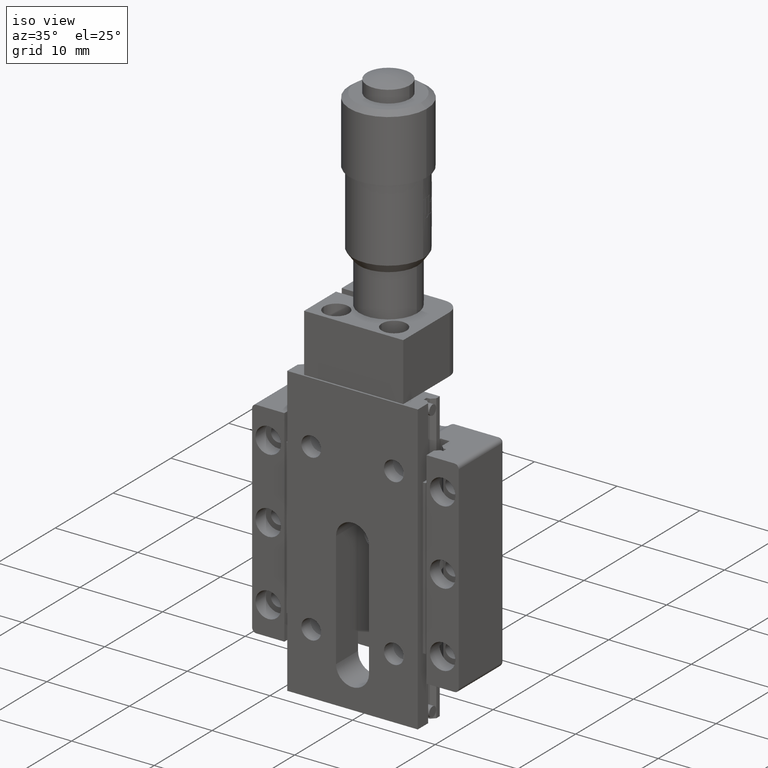
[diagram: clean part render]
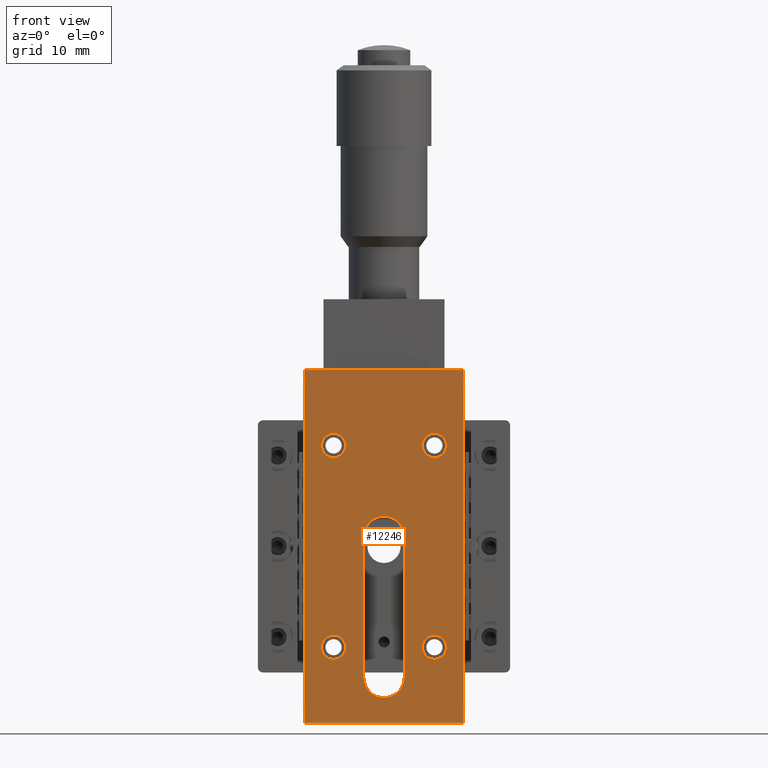
[diagram: tour spotlight — one face highlighted and labeled with its STEP entity id]
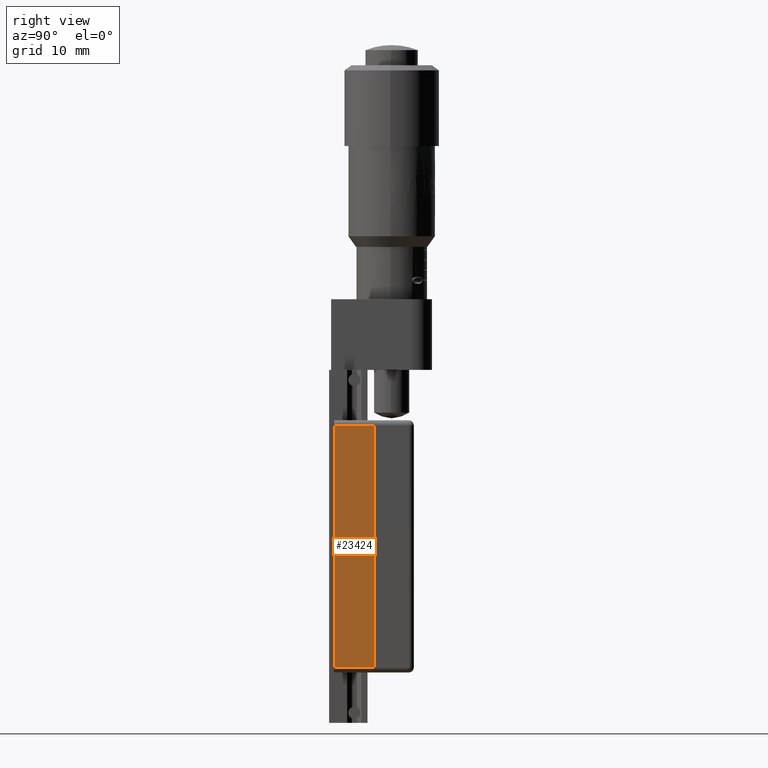
[diagram: tour spotlight — one face highlighted and labeled with its STEP entity id]
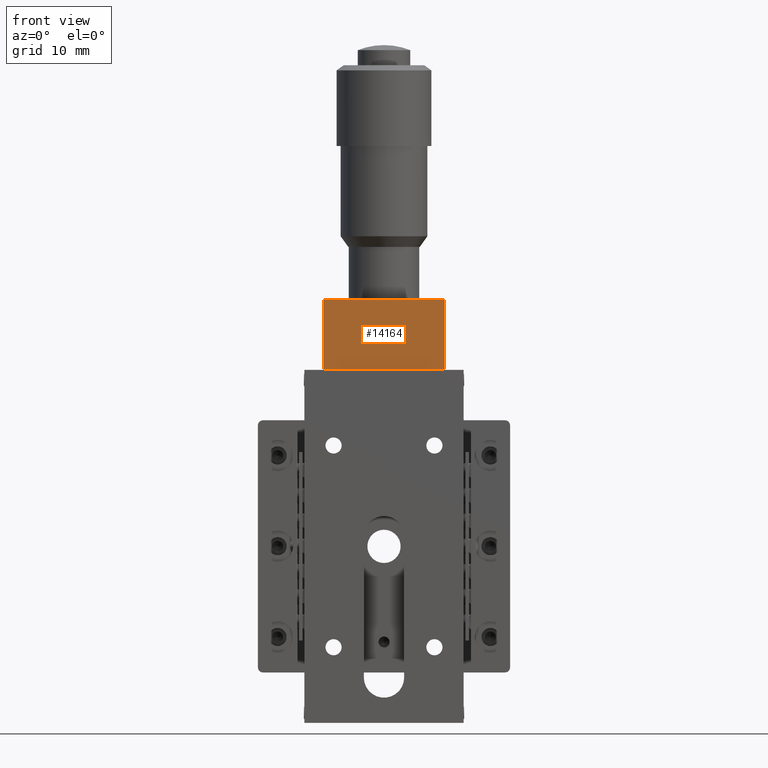
[diagram: tour spotlight — one face highlighted and labeled with its STEP entity id]
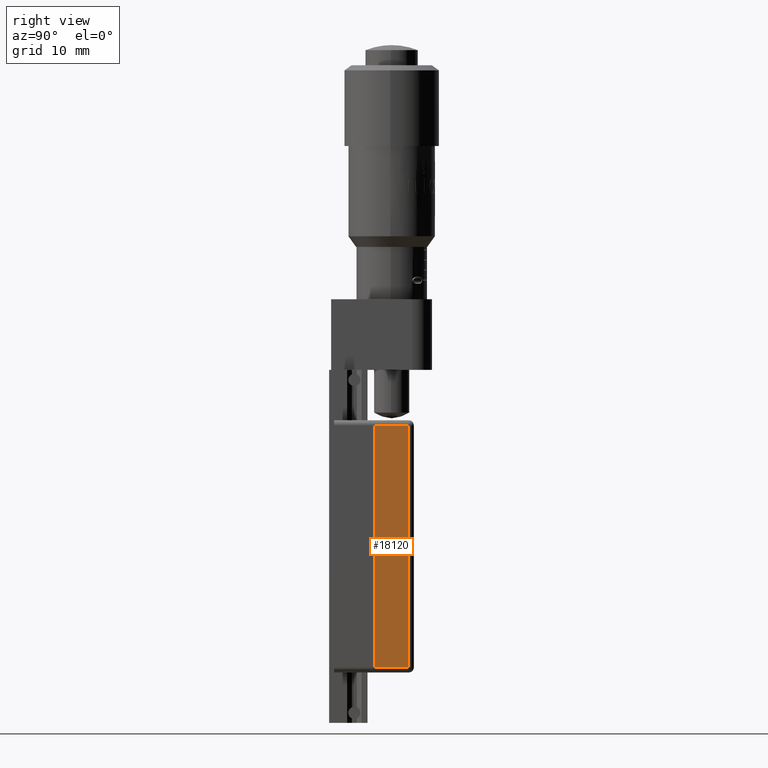
[diagram: tour spotlight — one face highlighted and labeled with its STEP entity id]
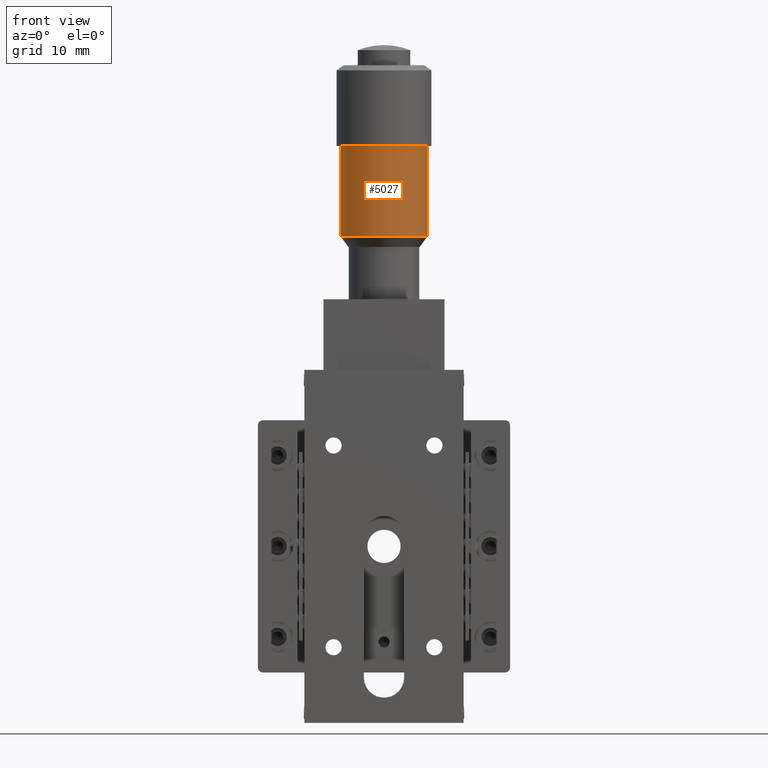
[diagram: tour spotlight — one face highlighted and labeled with its STEP entity id]
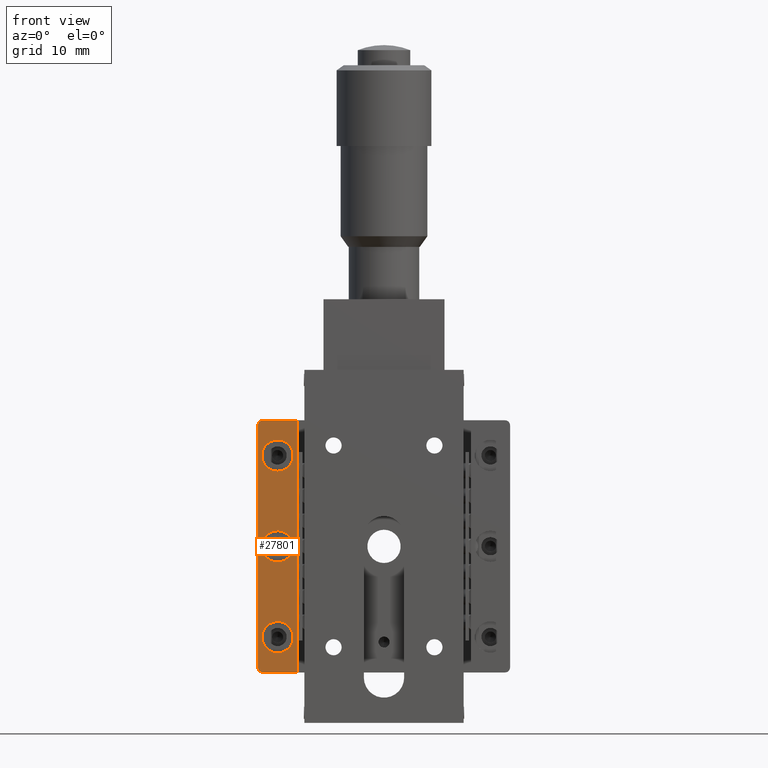
[diagram: tour spotlight — one face highlighted and labeled with its STEP entity id]
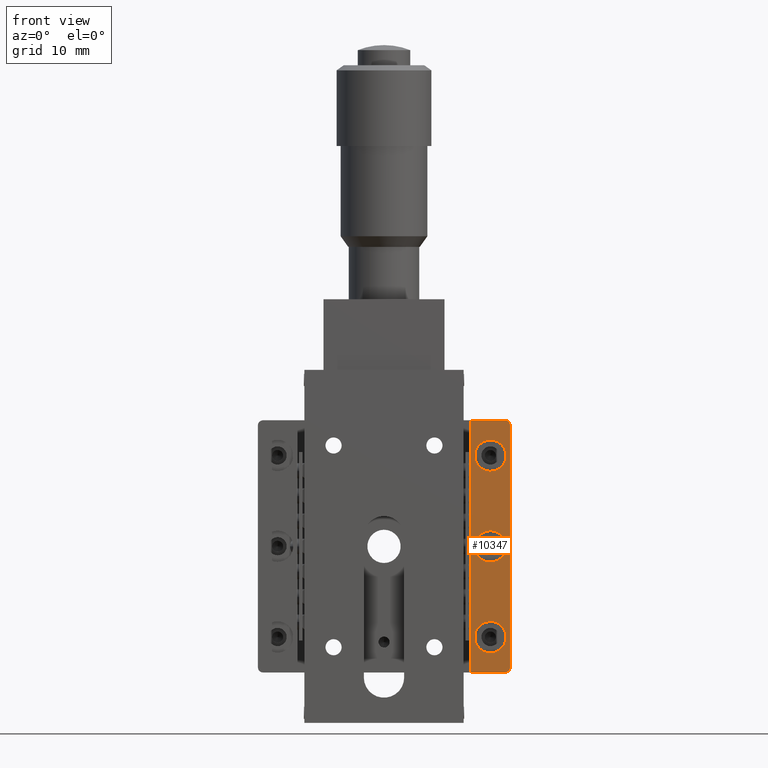
[diagram: tour spotlight — one face highlighted and labeled with its STEP entity id]
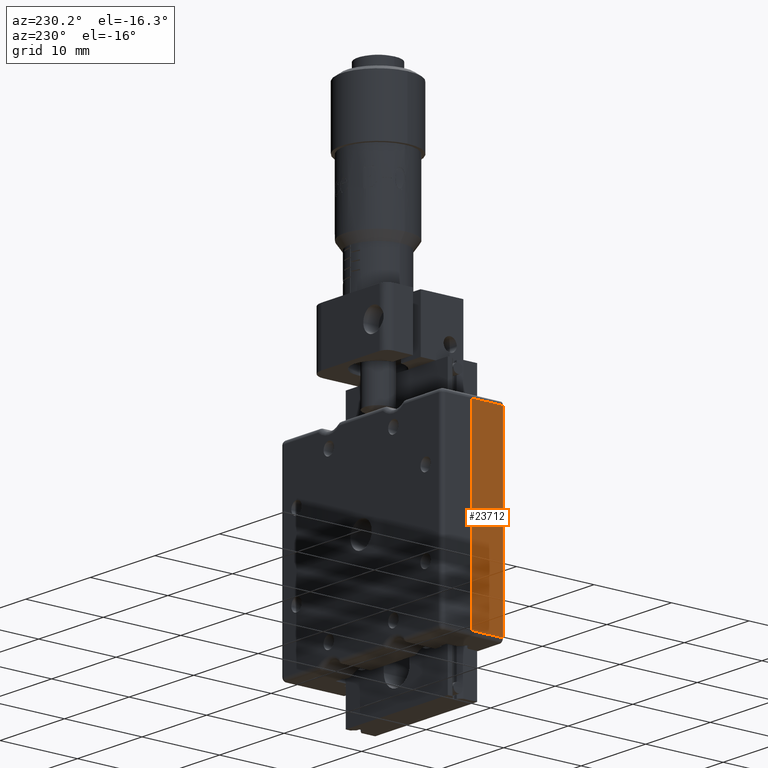
[diagram: tour spotlight — one face highlighted and labeled with its STEP entity id]
A machine part: a face-by-face anatomy tour. The part has 832 B-rep faces; the first image is the clean iso view, then the 8 largest visible faces are spotlighted one at a time (largest first), each with its STEP entity span.

Face 1 — front view, entity #12246. In plain terms, the highlighted planar face has unit normal (0, 1, 0).
Definition (entity closure, byte-faithful):
#123 = CIRCLE ( 'NONE', #15542, 1.199999999999999700 ) ;
#515 = DIRECTION ( 'NONE',  ( 0.0000000000000000000, 1.110223024625156700E-015, -1.000000000000000000 ) ) ;
#624 = PLANE ( 'NONE',  #18451 ) ;
#821 = CARTESIAN_POINT ( 'NONE',  ( 7.900000000000000400, 1.942890293094024300E-014, -17.50000000000000000 ) ) ;
#1075 = EDGE_CURVE ( 'NONE', #9362, #20607, #22504, .T. ) ;
#1411 = EDGE_CURVE ( 'NONE', #20607, #9362, #26750, .T. ) ;
#1953 = AXIS2_PLACEMENT_3D ( 'NONE', #7807, #26919, #2202 ) ;
#1964 = CIRCLE ( 'NONE', #17140, 2.000000000000000000 ) ;
#2198 = EDGE_LOOP ( 'NONE', ( #5336, #11113 ) ) ;
#2202 = DIRECTION ( 'NONE',  ( 0.0000000000000000000, 1.110223024625156700E-015, -1.000000000000000000 ) ) ;
#2288 = VERTEX_POINT ( 'NONE', #11480 ) ;
#2291 = DIRECTION ( 'NONE',  ( -1.000000000000000000, 0.0000000000000000000, 0.0000000000000000000 ) ) ;
#2564 = CARTESIAN_POINT ( 'NONE',  ( -2.000000000000000000, 1.443289932012704100E-014, -13.00000000000000400 ) ) ;
#2698 = DIRECTION ( 'NONE',  ( 0.0000000000000000000, 1.110223024625156500E-015, -1.000000000000000000 ) ) ;
#3035 = DIRECTION ( 'NONE',  ( -0.0000000000000000000, -1.000000000000000000, 1.387778780781445900E-015 ) ) ;
#3066 = DIRECTION ( 'NONE',  ( -0.0000000000000000000, -1.000000000000000000, 1.387778780781445900E-015 ) ) ;
#3231 = DIRECTION ( 'NONE',  ( 0.0000000000000000000, 1.110223024625156500E-015, -1.000000000000000000 ) ) ;
#3294 = ORIENTED_EDGE ( 'NONE', *, *, #26807, .F. ) ;
#3336 = CARTESIAN_POINT ( 'NONE',  ( 5.000000000000001800, -1.110223024625156700E-014, 10.00000000000000000 ) ) ;
#3577 = CARTESIAN_POINT ( 'NONE',  ( 4.999999999999999100, 1.243449787580176000E-014, -11.20000000000000300 ) ) ;
#3988 = CARTESIAN_POINT ( 'NONE',  ( -2.000000000000000000, 1.443289932012704100E-014, -13.00000000000000400 ) ) ;
#4057 = CARTESIAN_POINT ( 'NONE',  ( 5.000000000000001800, -9.436895709313832200E-015, 11.19999999999999900 ) ) ;
#4111 = DIRECTION ( 'NONE',  ( -0.0000000000000000000, -1.000000000000000000, 1.387778780781445900E-015 ) ) ;
#4207 = EDGE_CURVE ( 'NONE', #12172, #5530, #23193, .T. ) ;
#4216 = ORIENTED_EDGE ( 'NONE', *, *, #4843, .F. ) ;
#4843 = EDGE_CURVE ( 'NONE', #34084, #34095, #10889, .T. ) ;
#4943 = CARTESIAN_POINT ( 'NONE',  ( -5.000000000000000900, 1.110223024625156700E-014, -10.00000000000000200 ) ) ;
#5256 = ORIENTED_EDGE ( 'NONE', *, *, #9665, .T. ) ;
#5336 = ORIENTED_EDGE ( 'NONE', *, *, #1075, .F. ) ;
#5349 = FACE_BOUND ( 'NONE', #20700, .T. ) ;
#5530 = VERTEX_POINT ( 'NONE', #32661 ) ;
#5802 = DIRECTION ( 'NONE',  ( -0.0000000000000000000, -1.000000000000000000, 1.387778780781445900E-015 ) ) ;
#5975 = EDGE_CURVE ( 'NONE', #19625, #9632, #30275, .T. ) ;
#6233 = LINE ( 'NONE', #16791, #13461 ) ;
#6430 = LINE ( 'NONE', #7745, #34474 ) ;
#6618 = ORIENTED_EDGE ( 'NONE', *, *, #11742, .F. ) ;
#6721 = DIRECTION ( 'NONE',  ( 9.293161478447181700E-017, 1.110223024625156700E-015, -1.000000000000000000 ) ) ;
#6748 = ORIENTED_EDGE ( 'NONE', *, *, #8784, .F. ) ;
#6973 = AXIS2_PLACEMENT_3D ( 'NONE', #32997, #3066, #2698 ) ;
#7062 = CARTESIAN_POINT ( 'NONE',  ( 4.999999999999999100, 1.110223024625157200E-014, -10.00000000000000400 ) ) ;
#7745 = CARTESIAN_POINT ( 'NONE',  ( 2.000000000000000000, 1.443289932012704100E-014, -13.00000000000000400 ) ) ;
#7807 = CARTESIAN_POINT ( 'NONE',  ( -1.775737858763662000E-015, -1.110223024625153800E-015, 0.9999999999999974500 ) ) ;
#8285 = DIRECTION ( 'NONE',  ( 0.0000000000000000000, 1.110223024625156500E-015, -1.000000000000000000 ) ) ;
#8376 = VECTOR ( 'NONE', #21830, 1000.000000000000000 ) ;
#8587 = EDGE_CURVE ( 'NONE', #13687, #2288, #13174, .T. ) ;
#8784 = EDGE_CURVE ( 'NONE', #26411, #19625, #32238, .T. ) ;
#8958 = DIRECTION ( 'NONE',  ( -0.0000000000000000000, -1.000000000000000000, 1.387778780781445900E-015 ) ) ;
#9161 = CARTESIAN_POINT ( 'NONE',  ( -7.900000000000002100, -1.942890293094024300E-014, 17.50000000000000000 ) ) ;
#9275 = EDGE_CURVE ( 'NONE', #14502, #17885, #22861, .T. ) ;
#9300 = DIRECTION ( 'NONE',  ( -0.0000000000000000000, -1.000000000000000000, 1.387778780781445900E-015 ) ) ;
#9315 = ORIENTED_EDGE ( 'NONE', *, *, #10950, .F. ) ;
#9362 = VERTEX_POINT ( 'NONE', #27375 ) ;
#9632 = VERTEX_POINT ( 'NONE', #2564 ) ;
#9665 = EDGE_CURVE ( 'NONE', #12172, #17885, #33501, .T. ) ;
#9693 = DIRECTION ( 'NONE',  ( -0.0000000000000000000, -1.000000000000000000, 1.387778780781445900E-015 ) ) ;
#9805 = ORIENTED_EDGE ( 'NONE', *, *, #20784, .F. ) ;
#10889 = CIRCLE ( 'NONE', #32994, 1.199999999999999700 ) ;
#10950 = EDGE_CURVE ( 'NONE', #5530, #14502, #6233, .T. ) ;
#11113 = ORIENTED_EDGE ( 'NONE', *, *, #1411, .F. ) ;
#11213 = ORIENTED_EDGE ( 'NONE', *, *, #4207, .F. ) ;
#11480 = CARTESIAN_POINT ( 'NONE',  ( 5.000000000000001800, -9.769962616701380700E-015, 8.800000000000000700 ) ) ;
#11736 = FACE_BOUND ( 'NONE', #31103, .T. ) ;
#11742 = EDGE_CURVE ( 'NONE', #2288, #13687, #32122, .T. ) ;
#12027 = DIRECTION ( 'NONE',  ( 0.0000000000000000000, 1.110223024625156700E-015, -1.000000000000000000 ) ) ;
#12172 = VERTEX_POINT ( 'NONE', #30008 ) ;
#12246 = ADVANCED_FACE ( 'NONE', ( #21041, #5349, #33816, #18958, #11736, #26549 ), #624, .F. ) ;
#12355 = VERTEX_POINT ( 'NONE', #25697 ) ;
#13020 = DIRECTION ( 'NONE',  ( 0.0000000000000000000, 1.110223024625157500E-015, -1.000000000000000000 ) ) ;
#13174 = CIRCLE ( 'NONE', #29982, 1.199999999999999700 ) ;
#13461 = VECTOR ( 'NONE', #22557, 1000.000000000000000 ) ;
#13562 = AXIS2_PLACEMENT_3D ( 'NONE', #18148, #20528, #23215 ) ;
#13687 = VERTEX_POINT ( 'NONE', #4057 ) ;
#14502 = VERTEX_POINT ( 'NONE', #821 ) ;
#14854 = EDGE_CURVE ( 'NONE', #16601, #12355, #123, .T. ) ;
#15542 = AXIS2_PLACEMENT_3D ( 'NONE', #16266, #3035, #8285 ) ;
#15886 = DIRECTION ( 'NONE',  ( -0.0000000000000000000, -1.000000000000000000, 1.387778780781445900E-015 ) ) ;
#16266 = CARTESIAN_POINT ( 'NONE',  ( -4.999999999999998200, -1.110223024625156700E-014, 10.00000000000000200 ) ) ;
#16601 = VERTEX_POINT ( 'NONE', #31598 ) ;
#16791 = CARTESIAN_POINT ( 'NONE',  ( 7.900000000000000400, -1.948441408217151000E-014, 17.55000000000000400 ) ) ;
#17140 = AXIS2_PLACEMENT_3D ( 'NONE', #35101, #15886, #13020 ) ;
#17193 = ORIENTED_EDGE ( 'NONE', *, *, #30639, .F. ) ;
#17474 = ORIENTED_EDGE ( 'NONE', *, *, #5975, .F. ) ;
#17885 = VERTEX_POINT ( 'NONE', #23896 ) ;
#18148 = CARTESIAN_POINT ( 'NONE',  ( -4.999999999999998200, -1.110223024625156700E-014, 10.00000000000000200 ) ) ;
#18451 = AXIS2_PLACEMENT_3D ( 'NONE', #28124, #22406, #515 ) ;
#18958 = FACE_BOUND ( 'NONE', #19936, .T. ) ;
#19488 = CARTESIAN_POINT ( 'NONE',  ( 4.999999999999999100, 1.110223024625157200E-014, -10.00000000000000400 ) ) ;
#19625 = VERTEX_POINT ( 'NONE', #26935 ) ;
#19806 = VERTEX_POINT ( 'NONE', #22187 ) ;
#19936 = EDGE_LOOP ( 'NONE', ( #3294, #33049 ) ) ;
#20528 = DIRECTION ( 'NONE',  ( -0.0000000000000000000, -1.000000000000000000, 1.387778780781445900E-015 ) ) ;
#20607 = VERTEX_POINT ( 'NONE', #30945 ) ;
#20700 = EDGE_LOOP ( 'NONE', ( #6618, #23331 ) ) ;
#20784 = EDGE_CURVE ( 'NONE', #9632, #19806, #1964, .T. ) ;
#21041 = FACE_BOUND ( 'NONE', #2198, .T. ) ;
#21113 = DIRECTION ( 'NONE',  ( 0.0000000000000000000, 1.110223024625156700E-015, -1.000000000000000000 ) ) ;
#21785 = VERTEX_POINT ( 'NONE', #27127 ) ;
#21830 = DIRECTION ( 'NONE',  ( 1.000000000000000000, 0.0000000000000000000, -0.0000000000000000000 ) ) ;
#22187 = CARTESIAN_POINT ( 'NONE',  ( 2.000000000000000000, 1.443289932012704100E-014, -13.00000000000000400 ) ) ;
#22406 = DIRECTION ( 'NONE',  ( 0.0000000000000000000, 1.000000000000000000, 1.110223024625156700E-015 ) ) ;
#22460 = VECTOR ( 'NONE', #2291, 1000.000000000000000 ) ;
#22504 = CIRCLE ( 'NONE', #6973, 1.199999999999999700 ) ;
#22557 = DIRECTION ( 'NONE',  ( 0.0000000000000000000, 1.110223024625156700E-015, -1.000000000000000000 ) ) ;
#22715 = CARTESIAN_POINT ( 'NONE',  ( 5.000000000000001800, -1.110223024625156700E-014, 10.00000000000000000 ) ) ;
#22861 = LINE ( 'NONE', #26151, #22460 ) ;
#23193 = LINE ( 'NONE', #9161, #8376 ) ;
#23215 = DIRECTION ( 'NONE',  ( 0.0000000000000000000, 1.110223024625156500E-015, -1.000000000000000000 ) ) ;
#23331 = ORIENTED_EDGE ( 'NONE', *, *, #8587, .F. ) ;
#23896 = CARTESIAN_POINT ( 'NONE',  ( -7.900000000000002100, 1.942890293094024300E-014, -17.50000000000000000 ) ) ;
#23905 = ORIENTED_EDGE ( 'NONE', *, *, #27511, .F. ) ;
#24072 = AXIS2_PLACEMENT_3D ( 'NONE', #19488, #5802, #32638 ) ;
#24670 = EDGE_LOOP ( 'NONE', ( #17474, #6748, #17193, #23905, #9805 ) ) ;
#25697 = CARTESIAN_POINT ( 'NONE',  ( -4.999999999999998200, -9.769962616701380700E-015, 8.800000000000002500 ) ) ;
#26141 = AXIS2_PLACEMENT_3D ( 'NONE', #22715, #8958, #3231 ) ;
#26151 = CARTESIAN_POINT ( 'NONE',  ( 7.900000000000000400, 1.942890293094024300E-014, -17.50000000000000000 ) ) ;
#26411 = VERTEX_POINT ( 'NONE', #31100 ) ;
#26549 = FACE_OUTER_BOUND ( 'NONE', #30265, .T. ) ;
#26750 = CIRCLE ( 'NONE', #34973, 1.199999999999999700 ) ;
#26807 = EDGE_CURVE ( 'NONE', #12355, #16601, #26822, .T. ) ;
#26822 = CIRCLE ( 'NONE', #13562, 1.199999999999999700 ) ;
#26919 = DIRECTION ( 'NONE',  ( -0.0000000000000000000, -1.000000000000000000, 1.387778780781445900E-015 ) ) ;
#26935 = CARTESIAN_POINT ( 'NONE',  ( -2.000000000000001300, -1.110223024625153800E-015, 0.9999999999999974500 ) ) ;
#27127 = CARTESIAN_POINT ( 'NONE',  ( 1.999999999999997800, -1.110223024625153600E-015, 0.9999999999999970000 ) ) ;
#27375 = CARTESIAN_POINT ( 'NONE',  ( -5.000000000000000900, 1.243449787580175500E-014, -11.20000000000000100 ) ) ;
#27511 = EDGE_CURVE ( 'NONE', #19806, #21785, #6430, .T. ) ;
#27955 = CARTESIAN_POINT ( 'NONE',  ( 4.999999999999999100, 1.276756478318930500E-014, -8.800000000000004300 ) ) ;
#28124 = CARTESIAN_POINT ( 'NONE',  ( -7.900000000000002100, -1.948441408217151000E-014, 17.55000000000000400 ) ) ;
#28416 = CARTESIAN_POINT ( 'NONE',  ( -1.775737858763662000E-015, -1.110223024625153800E-015, 0.9999999999999974500 ) ) ;
#28435 = CIRCLE ( 'NONE', #29587, 1.999999999999999600 ) ;
#29253 = DIRECTION ( 'NONE',  ( 0.0000000000000000000, 1.110223024625156500E-015, -1.000000000000000000 ) ) ;
#29445 = CARTESIAN_POINT ( 'NONE',  ( -7.900000000000002100, -1.948441408217151000E-014, 17.55000000000000400 ) ) ;
#29533 = DIRECTION ( 'NONE',  ( -0.0000000000000000000, -1.000000000000000000, 1.387778780781445900E-015 ) ) ;
#29587 = AXIS2_PLACEMENT_3D ( 'NONE', #28416, #9300, #12027 ) ;
#29646 = DIRECTION ( 'NONE',  ( 0.0000000000000000000, 1.110223024625156500E-015, -1.000000000000000000 ) ) ;
#29829 = DIRECTION ( 'NONE',  ( -1.548860246407863600E-016, -1.110223024625156700E-015, 1.000000000000000000 ) ) ;
#29982 = AXIS2_PLACEMENT_3D ( 'NONE', #3336, #4111, #29253 ) ;
#30008 = CARTESIAN_POINT ( 'NONE',  ( -7.900000000000002100, -1.942890293094024300E-014, 17.50000000000000000 ) ) ;
#30083 = VECTOR ( 'NONE', #21113, 1000.000000000000000 ) ;
#30265 = EDGE_LOOP ( 'NONE', ( #11213, #5256, #30320, #9315 ) ) ;
#30275 = LINE ( 'NONE', #3988, #32378 ) ;
#30320 = ORIENTED_EDGE ( 'NONE', *, *, #9275, .F. ) ;
#30389 = CIRCLE ( 'NONE', #24072, 1.199999999999999700 ) ;
#30639 = EDGE_CURVE ( 'NONE', #21785, #26411, #28435, .T. ) ;
#30945 = CARTESIAN_POINT ( 'NONE',  ( -5.000000000000000900, 1.276756478318930200E-014, -8.800000000000002500 ) ) ;
#31100 = CARTESIAN_POINT ( 'NONE',  ( -1.775737858763662000E-015, 1.665334536937737200E-015, 2.999999999999996900 ) ) ;
#31103 = EDGE_LOOP ( 'NONE', ( #4216, #34418 ) ) ;
#31598 = CARTESIAN_POINT ( 'NONE',  ( -4.999999999999998200, -9.436895709313832200E-015, 11.20000000000000100 ) ) ;
#32122 = CIRCLE ( 'NONE', #26141, 1.199999999999999700 ) ;
#32238 = CIRCLE ( 'NONE', #1953, 1.999999999999999600 ) ;
#32378 = VECTOR ( 'NONE', #6721, 1000.000000000000000 ) ;
#32638 = DIRECTION ( 'NONE',  ( 0.0000000000000000000, 1.110223024625156500E-015, -1.000000000000000000 ) ) ;
#32661 = CARTESIAN_POINT ( 'NONE',  ( 7.900000000000000400, -1.942890293094024300E-014, 17.50000000000000000 ) ) ;
#32994 = AXIS2_PLACEMENT_3D ( 'NONE', #7062, #9693, #34269 ) ;
#32997 = CARTESIAN_POINT ( 'NONE',  ( -5.000000000000000900, 1.110223024625156700E-014, -10.00000000000000200 ) ) ;
#33049 = ORIENTED_EDGE ( 'NONE', *, *, #14854, .F. ) ;
#33501 = LINE ( 'NONE', #29445, #30083 ) ;
#33816 = FACE_BOUND ( 'NONE', #24670, .T. ) ;
#34084 = VERTEX_POINT ( 'NONE', #3577 ) ;
#34095 = VERTEX_POINT ( 'NONE', #27955 ) ;
#34269 = DIRECTION ( 'NONE',  ( 0.0000000000000000000, 1.110223024625156500E-015, -1.000000000000000000 ) ) ;
#34418 = ORIENTED_EDGE ( 'NONE', *, *, #34438, .F. ) ;
#34438 = EDGE_CURVE ( 'NONE', #34095, #34084, #30389, .T. ) ;
#34474 = VECTOR ( 'NONE', #29829, 1000.000000000000000 ) ;
#34973 = AXIS2_PLACEMENT_3D ( 'NONE', #4943, #29533, #29646 ) ;
#35101 = CARTESIAN_POINT ( 'NONE',  ( 0.0000000000000000000, 1.443289932012704100E-014, -13.00000000000000400 ) ) ;

Face 2 — right view, entity #23424. In plain terms, the highlighted planar face has unit normal (-1, -0, -0).
Definition (entity closure, byte-faithful):
#387 = DIRECTION ( 'NONE',  ( 5.073516085382030700E-015, -1.000000000000000000, 1.868885533004952300E-016 ) ) ;
#554 = VECTOR ( 'NONE', #387, 1000.000000000000000 ) ;
#2429 = VERTEX_POINT ( 'NONE', #20269 ) ;
#3590 = VECTOR ( 'NONE', #14156, 1000.000000000000000 ) ;
#4181 = VERTEX_POINT ( 'NONE', #14539 ) ;
#5673 = VERTEX_POINT ( 'NONE', #29439 ) ;
#7952 = DIRECTION ( 'NONE',  ( -1.665334536937669200E-016, 1.868885533004865300E-016, 1.000000000000000000 ) ) ;
#8700 = LINE ( 'NONE', #24761, #554 ) ;
#9884 = EDGE_LOOP ( 'NONE', ( #23346, #16249, #25691, #20368 ) ) ;
#11765 = CARTESIAN_POINT ( 'NONE',  ( 12.49999999999999500, 0.5000000000000967000, 11.99999999999983800 ) ) ;
#12506 = DIRECTION ( 'NONE',  ( 1.665334536937669200E-016, -1.868885533004865300E-016, -1.000000000000000000 ) ) ;
#14156 = DIRECTION ( 'NONE',  ( 1.665334536937669200E-016, -1.868885533004865300E-016, -1.000000000000000000 ) ) ;
#14274 = CARTESIAN_POINT ( 'NONE',  ( 12.49999999999997300, 4.500000000000097700, 18.27800139664771400 ) ) ;
#14539 = CARTESIAN_POINT ( 'NONE',  ( 12.49999999999999800, 0.5000000000000923700, -12.00000000000016200 ) ) ;
#15376 = VECTOR ( 'NONE', #12506, 1000.000000000000000 ) ;
#15781 = EDGE_CURVE ( 'NONE', #4181, #5673, #31575, .T. ) ;
#16174 = PLANE ( 'NONE',  #29902 ) ;
#16249 = ORIENTED_EDGE ( 'NONE', *, *, #24660, .T. ) ;
#16614 = EDGE_CURVE ( 'NONE', #29698, #4181, #18782, .T. ) ;
#17017 = CARTESIAN_POINT ( 'NONE',  ( 12.49999999999999800, 0.5000000000000923700, -12.00000000000016200 ) ) ;
#18782 = LINE ( 'NONE', #34008, #15376 ) ;
#18896 = DIRECTION ( 'NONE',  ( -1.000000000000000000, -5.073516085382030700E-015, -1.665334536937659900E-016 ) ) ;
#19503 = DIRECTION ( 'NONE',  ( -5.073516085382030700E-015, 1.000000000000000000, -1.868885533004950300E-016 ) ) ;
#20269 = CARTESIAN_POINT ( 'NONE',  ( 12.49999999999997500, 4.500000000000096800, 11.99999999999983800 ) ) ;
#20368 = ORIENTED_EDGE ( 'NONE', *, *, #15781, .T. ) ;
#21590 = CARTESIAN_POINT ( 'NONE',  ( 12.49999999999999300, 0.5000000000000980300, 18.27800139664768900 ) ) ;
#23346 = ORIENTED_EDGE ( 'NONE', *, *, #24249, .F. ) ;
#23424 = ADVANCED_FACE ( 'NONE', ( #26553 ), #16174, .F. ) ;
#23541 = LINE ( 'NONE', #14274, #3590 ) ;
#24249 = EDGE_CURVE ( 'NONE', #2429, #5673, #23541, .T. ) ;
#24344 = VECTOR ( 'NONE', #19503, 1000.000000000000000 ) ;
#24660 = EDGE_CURVE ( 'NONE', #2429, #29698, #8700, .T. ) ;
#24761 = CARTESIAN_POINT ( 'NONE',  ( 12.49999999999999500, 0.5000000000000967000, 11.99999999999983800 ) ) ;
#25691 = ORIENTED_EDGE ( 'NONE', *, *, #16614, .T. ) ;
#26553 = FACE_OUTER_BOUND ( 'NONE', #9884, .T. ) ;
#29439 = CARTESIAN_POINT ( 'NONE',  ( 12.49999999999997900, 4.500000000000092400, -12.00000000000016200 ) ) ;
#29698 = VERTEX_POINT ( 'NONE', #11765 ) ;
#29902 = AXIS2_PLACEMENT_3D ( 'NONE', #21590, #18896, #7952 ) ;
#31575 = LINE ( 'NONE', #17017, #24344 ) ;
#34008 = CARTESIAN_POINT ( 'NONE',  ( 12.49999999999999300, 0.5000000000000980300, 18.27800139664768900 ) ) ;

Face 3 — front view, entity #14164. In plain terms, the highlighted planar face has unit normal (0, 1, -0).
Definition (entity closure, byte-faithful):
#1793 = FACE_OUTER_BOUND ( 'NONE', #28517, .T. ) ;
#3753 = CARTESIAN_POINT ( 'NONE',  ( 6.000000000000866000, 0.2000000000000033400, 17.50000000000000000 ) ) ;
#4104 = PLANE ( 'NONE',  #6878 ) ;
#6878 = AXIS2_PLACEMENT_3D ( 'NONE', #3753, #23087, #31286 ) ;
#8133 = DIRECTION ( 'NONE',  ( -2.775557561562891400E-016, -1.142172911347806300E-016, 1.000000000000000000 ) ) ;
#8416 = EDGE_CURVE ( 'NONE', #28541, #14781, #15738, .T. ) ;
#9448 = VECTOR ( 'NONE', #8133, 1000.000000000000000 ) ;
#14164 = ADVANCED_FACE ( 'NONE', ( #1793 ), #4104, .F. ) ;
#14781 = VERTEX_POINT ( 'NONE', #27397 ) ;
#15002 = CARTESIAN_POINT ( 'NONE',  ( 6.000000000000866000, 0.2000000000000033400, 17.50000000000000000 ) ) ;
#15362 = EDGE_CURVE ( 'NONE', #25095, #27795, #23902, .T. ) ;
#15738 = LINE ( 'NONE', #33843, #20796 ) ;
#16358 = EDGE_CURVE ( 'NONE', #27795, #14781, #23005, .T. ) ;
#17592 = DIRECTION ( 'NONE',  ( -1.000000000000000000, 6.111896442571328800E-016, 5.551115123125781700E-016 ) ) ;
#18722 = CARTESIAN_POINT ( 'NONE',  ( -5.999999999999134900, 0.2000000000000107200, 17.50000000000000000 ) ) ;
#19266 = ORIENTED_EDGE ( 'NONE', *, *, #34192, .T. ) ;
#19634 = CARTESIAN_POINT ( 'NONE',  ( -5.999999999999134900, 0.2000000000000107200, 17.50000000000000000 ) ) ;
#20796 = VECTOR ( 'NONE', #17592, 1000.000000000000000 ) ;
#21436 = VECTOR ( 'NONE', #23847, 1000.000000000000000 ) ;
#22125 = CARTESIAN_POINT ( 'NONE',  ( 6.000000000000860600, 0.2000000000000027000, 24.50000000000000000 ) ) ;
#23005 = LINE ( 'NONE', #18722, #9448 ) ;
#23087 = DIRECTION ( 'NONE',  ( 6.111896442571325900E-016, 1.000000000000000000, -5.082140893937405600E-016 ) ) ;
#23847 = DIRECTION ( 'NONE',  ( -2.775557561562891400E-016, -1.142172911347806300E-016, 1.000000000000000000 ) ) ;
#23902 = LINE ( 'NONE', #28126, #29045 ) ;
#24836 = ORIENTED_EDGE ( 'NONE', *, *, #8416, .T. ) ;
#25095 = VERTEX_POINT ( 'NONE', #25187 ) ;
#25187 = CARTESIAN_POINT ( 'NONE',  ( 6.000000000000866000, 0.2000000000000033400, 17.50000000000000000 ) ) ;
#26641 = ORIENTED_EDGE ( 'NONE', *, *, #15362, .F. ) ;
#26966 = LINE ( 'NONE', #15002, #21436 ) ;
#27397 = CARTESIAN_POINT ( 'NONE',  ( -5.999999999999139400, 0.2000000000000098600, 24.50000000000000000 ) ) ;
#27795 = VERTEX_POINT ( 'NONE', #19634 ) ;
#28126 = CARTESIAN_POINT ( 'NONE',  ( 6.000000000000866000, 0.2000000000000033400, 17.50000000000000000 ) ) ;
#28517 = EDGE_LOOP ( 'NONE', ( #24836, #34445, #26641, #19266 ) ) ;
#28541 = VERTEX_POINT ( 'NONE', #22125 ) ;
#29045 = VECTOR ( 'NONE', #33448, 1000.000000000000000 ) ;
#31286 = DIRECTION ( 'NONE',  ( 1.000000000000000000, -6.111896442571328800E-016, -5.551115123125781700E-016 ) ) ;
#33448 = DIRECTION ( 'NONE',  ( -1.000000000000000000, 6.111896442571328800E-016, 5.551115123125781700E-016 ) ) ;
#33843 = CARTESIAN_POINT ( 'NONE',  ( 6.000000000000860600, 0.2000000000000027000, 24.50000000000000000 ) ) ;
#34192 = EDGE_CURVE ( 'NONE', #25095, #28541, #26966, .T. ) ;
#34445 = ORIENTED_EDGE ( 'NONE', *, *, #16358, .F. ) ;

Face 4 — right view, entity #18120. In plain terms, the highlighted planar face has unit normal (-1, 0, 0).
Definition (entity closure, byte-faithful):
#369 = VERTEX_POINT ( 'NONE', #19393 ) ;
#2197 = EDGE_CURVE ( 'NONE', #369, #11429, #22898, .T. ) ;
#2201 = DIRECTION ( 'NONE',  ( -3.223402558938702000E-016, -1.000000000000000000, -7.006492321624085400E-046 ) ) ;
#3586 = DIRECTION ( 'NONE',  ( 3.223402558938702000E-016, 1.000000000000000000, 7.006492321624085400E-046 ) ) ;
#4010 = VERTEX_POINT ( 'NONE', #28361 ) ;
#4934 = VECTOR ( 'NONE', #24418, 1000.000000000000000 ) ;
#5054 = VECTOR ( 'NONE', #27639, 1000.000000000000000 ) ;
#10689 = ORIENTED_EDGE ( 'NONE', *, *, #23043, .F. ) ;
#10848 = CARTESIAN_POINT ( 'NONE',  ( 12.50000000000085100, 4.500000000000020400, -12.00000000000000000 ) ) ;
#11429 = VERTEX_POINT ( 'NONE', #13294 ) ;
#11460 = EDGE_CURVE ( 'NONE', #33937, #369, #29171, .T. ) ;
#12772 = LINE ( 'NONE', #29547, #17058 ) ;
#13294 = CARTESIAN_POINT ( 'NONE',  ( 12.50000000000086500, 7.900000000000030600, 12.00000000000000000 ) ) ;
#13896 = AXIS2_PLACEMENT_3D ( 'NONE', #20247, #19892, #3586 ) ;
#14759 = ORIENTED_EDGE ( 'NONE', *, *, #2197, .T. ) ;
#15778 = ORIENTED_EDGE ( 'NONE', *, *, #11460, .T. ) ;
#16363 = CARTESIAN_POINT ( 'NONE',  ( 12.50000000000085100, 4.500000000000020400, -12.50000000000000000 ) ) ;
#16369 = CARTESIAN_POINT ( 'NONE',  ( 12.50000000000086500, 7.900000000000030600, -12.50000000000000000 ) ) ;
#17058 = VECTOR ( 'NONE', #2201, 1000.000000000000000 ) ;
#17423 = EDGE_CURVE ( 'NONE', #11429, #4010, #12772, .T. ) ;
#18120 = ADVANCED_FACE ( 'NONE', ( #28495 ), #22815, .F. ) ;
#19393 = CARTESIAN_POINT ( 'NONE',  ( 12.50000000000086500, 7.900000000000030600, -12.00000000000000000 ) ) ;
#19892 = DIRECTION ( 'NONE',  ( -1.000000000000000000, 3.223402558938702000E-016, 3.116494029377566700E-061 ) ) ;
#20247 = CARTESIAN_POINT ( 'NONE',  ( 12.50000000000086500, 8.400000000000030600, -12.50000000000000000 ) ) ;
#21695 = CARTESIAN_POINT ( 'NONE',  ( 12.50000000000086500, 8.400000000000030600, -12.00000000000000000 ) ) ;
#22815 = PLANE ( 'NONE',  #13896 ) ;
#22898 = LINE ( 'NONE', #16369, #5054 ) ;
#23043 = EDGE_CURVE ( 'NONE', #33937, #4010, #25742, .T. ) ;
#24418 = DIRECTION ( 'NONE',  ( 3.223402558938702000E-016, 1.000000000000000000, 7.006492321624085400E-046 ) ) ;
#24864 = DIRECTION ( 'NONE',  ( -7.507670638184694700E-062, 6.130680781421074700E-046, 1.000000000000000000 ) ) ;
#25742 = LINE ( 'NONE', #16363, #34259 ) ;
#27639 = DIRECTION ( 'NONE',  ( -7.507670638184694700E-062, 6.130680781421074700E-046, 1.000000000000000000 ) ) ;
#28179 = ORIENTED_EDGE ( 'NONE', *, *, #17423, .T. ) ;
#28361 = CARTESIAN_POINT ( 'NONE',  ( 12.50000000000085100, 4.500000000000020400, 12.00000000000000000 ) ) ;
#28495 = FACE_OUTER_BOUND ( 'NONE', #31857, .T. ) ;
#29171 = LINE ( 'NONE', #21695, #4934 ) ;
#29547 = CARTESIAN_POINT ( 'NONE',  ( 12.50000000000085100, 4.500000000000020400, 12.00000000000000000 ) ) ;
#31857 = EDGE_LOOP ( 'NONE', ( #10689, #15778, #14759, #28179 ) ) ;
#33937 = VERTEX_POINT ( 'NONE', #10848 ) ;
#34259 = VECTOR ( 'NONE', #24864, 1000.000000000000000 ) ;

Face 5 — front view, entity #5027. In plain terms, the highlighted cylindrical surface (partial cylindrical patch) has radius 4.3 mm, axis along (0, 0, 1).
Definition (entity closure, byte-faithful):
#609 = CARTESIAN_POINT ( 'NONE',  ( -4.299421812216579000, 6.270537722050223200, 35.93747706129512700 ) ) ;
#1003 = CARTESIAN_POINT ( 'NONE',  ( -4.298161885207396600, 6.325715585947844700, 30.74746992999999400 ) ) ;
#1309 = DIRECTION ( 'NONE',  ( 1.110223024626043800E-016, 1.762506864451433400E-016, 1.000000000000000000 ) ) ;
#1762 = DIRECTION ( 'NONE',  ( 0.9995725314435851500, -0.02923618277858836300, 0.0000000000000000000 ) ) ;
#2100 = EDGE_CURVE ( 'NONE', #30474, #28001, #22055, .T. ) ;
#2228 = EDGE_CURVE ( 'NONE', #28644, #22858, #25167, .T. ) ;
#2319 = CARTESIAN_POINT ( 'NONE',  ( -4.298161885207388600, 6.325715585947845600, 39.69746992999999000 ) ) ;
#3341 = CARTESIAN_POINT ( 'NONE',  ( 2.604157784349260100E-014, 6.199999999999909600, 37.23787676788948900 ) ) ;
#3496 = CARTESIAN_POINT ( 'NONE',  ( -4.299084991811114700, 6.289292834810150400, 35.77487089155305000 ) ) ;
#4128 = CARTESIAN_POINT ( 'NONE',  ( -4.298161888975658800, 6.325715532416912100, 36.62222717098815400 ) ) ;
#4415 = DIRECTION ( 'NONE',  ( 1.110223024626043800E-016, 1.762506864451433400E-016, 1.000000000000000000 ) ) ;
#4475 = CARTESIAN_POINT ( 'NONE',  ( -4.298482493079164100, 6.314754140494763100, 36.58011535403744600 ) ) ;
#5027 = ADVANCED_FACE ( 'NONE', ( #28317 ), #30848, .T. ) ;
#6235 = CARTESIAN_POINT ( 'NONE',  ( -4.299320433775018400, 6.276487703568409200, 35.87675521470773500 ) ) ;
#6410 = CARTESIAN_POINT ( 'NONE',  ( 4.298161885207447200, 6.074284414051984300, 30.74746992999999400 ) ) ;
#6817 = CARTESIAN_POINT ( 'NONE',  ( -4.298161888975658800, 6.325715532416912100, 36.62222717098815400 ) ) ;
#6830 = DIRECTION ( 'NONE',  ( 1.110223024626043800E-016, 1.762506864451433400E-016, 1.000000000000000000 ) ) ;
#7646 = CARTESIAN_POINT ( 'NONE',  ( 2.550816937698809300E-014, 6.199999999999914900, 30.74746992999999400 ) ) ;
#7661 = CIRCLE ( 'NONE', #13888, 4.300000000000006000 ) ;
#7671 = CARTESIAN_POINT ( 'NONE',  ( -4.298161881797284400, 6.325715702572401800, 35.61349922465714700 ) ) ;
#7776 = CARTESIAN_POINT ( 'NONE',  ( 4.298161885207449000, 6.074284414051986000, 39.69746992999999000 ) ) ;
#8153 = CARTESIAN_POINT ( 'NONE',  ( -4.299518700135160500, 6.264334649978666300, 36.10190665839508000 ) ) ;
#8453 = CIRCLE ( 'NONE', #20512, 4.300000000000006000 ) ;
#8890 = VECTOR ( 'NONE', #22486, 1000.000000000000000 ) ;
#9217 = CARTESIAN_POINT ( 'NONE',  ( -4.299358902071584300, 6.274273284386511700, 35.89705032987758700 ) ) ;
#9458 = EDGE_CURVE ( 'NONE', #15819, #27786, #29249, .T. ) ;
#9733 = CARTESIAN_POINT ( 'NONE',  ( -4.299518700135160500, 6.264334649978666300, 36.10190665839508000 ) ) ;
#9967 = CARTESIAN_POINT ( 'NONE',  ( -4.299071530591043600, 6.289680441941960100, 36.45123226953234800 ) ) ;
#10252 = AXIS2_PLACEMENT_3D ( 'NONE', #3341, #32814, #27603 ) ;
#10793 = DIRECTION ( 'NONE',  ( 1.110223024626043800E-016, 1.762506864451433400E-016, 1.000000000000000000 ) ) ;
#11857 = CARTESIAN_POINT ( 'NONE',  ( 4.298161885207441000, 6.074284414051985200, 37.23787676788948900 ) ) ;
#11874 = ORIENTED_EDGE ( 'NONE', *, *, #35299, .T. ) ;
#12334 = CARTESIAN_POINT ( 'NONE',  ( -4.299371041534885600, 6.273556249581605300, 36.31743757126597000 ) ) ;
#13369 = ORIENTED_EDGE ( 'NONE', *, *, #19010, .F. ) ;
#13888 = AXIS2_PLACEMENT_3D ( 'NONE', #7646, #1309, #34020 ) ;
#14331 = CARTESIAN_POINT ( 'NONE',  ( -4.298161881797284400, 6.325715702572401800, 35.61349922465714700 ) ) ;
#14438 = CARTESIAN_POINT ( 'NONE',  ( 4.298161885207453500, 6.074284414051994000, 83.73849299920763700 ) ) ;
#14451 = CARTESIAN_POINT ( 'NONE',  ( -4.299509497574320900, 6.264949661988935300, 36.05122715350816500 ) ) ;
#14453 = EDGE_CURVE ( 'NONE', #17843, #27786, #24337, .T. ) ;
#14632 = LINE ( 'NONE', #25376, #23916 ) ;
#15325 = CARTESIAN_POINT ( 'NONE',  ( -4.299518700135160500, 6.264334649978666300, 36.10190665839508000 ) ) ;
#15819 = VERTEX_POINT ( 'NONE', #6410 ) ;
#16072 = VERTEX_POINT ( 'NONE', #21334 ) ;
#16330 = VERTEX_POINT ( 'NONE', #7776 ) ;
#16648 = ORIENTED_EDGE ( 'NONE', *, *, #25784, .F. ) ;
#17099 = ORIENTED_EDGE ( 'NONE', *, *, #29649, .T. ) ;
#17283 = EDGE_LOOP ( 'NONE', ( #16648, #17099, #24593, #24611, #11874, #27134, #17944, #13369, #23598, #32642, #23014 ) ) ;
#17288 = DIRECTION ( 'NONE',  ( 1.110223024626043800E-016, 1.762506864451433400E-016, 1.000000000000000000 ) ) ;
#17556 = CARTESIAN_POINT ( 'NONE',  ( 4.296902805728512600, 6.036824394829384500, 37.14221612708995900 ) ) ;
#17823 = EDGE_CURVE ( 'NONE', #22661, #16330, #31423, .T. ) ;
#17843 = VERTEX_POINT ( 'NONE', #17556 ) ;
#17944 = ORIENTED_EDGE ( 'NONE', *, *, #17823, .T. ) ;
#18048 = EDGE_CURVE ( 'NONE', #16072, #22661, #31021, .T. ) ;
#19010 = EDGE_CURVE ( 'NONE', #28001, #16330, #8453, .T. ) ;
#19573 = VECTOR ( 'NONE', #6830, 1000.000000000000000 ) ;
#20512 = AXIS2_PLACEMENT_3D ( 'NONE', #34463, #4415, #1762 ) ;
#20622 = CARTESIAN_POINT ( 'NONE',  ( 4.298161885207453500, 6.074284414051994000, 83.73849299920763700 ) ) ;
#21334 = CARTESIAN_POINT ( 'NONE',  ( 4.296902805728512600, 6.036824394829384500, 37.23787676788948900 ) ) ;
#22055 = LINE ( 'NONE', #32891, #30977 ) ;
#22486 = DIRECTION ( 'NONE',  ( 1.110223024626043800E-016, 1.762506864451433400E-016, 1.000000000000000000 ) ) ;
#22496 = CARTESIAN_POINT ( 'NONE',  ( -4.299489326010756500, 6.266301581300822900, 36.00756061587681200 ) ) ;
#22585 = VERTEX_POINT ( 'NONE', #1003 ) ;
#22661 = VERTEX_POINT ( 'NONE', #11857 ) ;
#22858 = VERTEX_POINT ( 'NONE', #7671 ) ;
#23014 = ORIENTED_EDGE ( 'NONE', *, *, #2228, .T. ) ;
#23224 = CARTESIAN_POINT ( 'NONE',  ( -4.299475642102383000, 6.267207786158829600, 36.22701718947349300 ) ) ;
#23598 = ORIENTED_EDGE ( 'NONE', *, *, #2100, .F. ) ;
#23916 = VECTOR ( 'NONE', #28165, 1000.000000000000000 ) ;
#24336 = AXIS2_PLACEMENT_3D ( 'NONE', #35195, #30077, #32454 ) ;
#24337 = CIRCLE ( 'NONE', #24590, 4.300000000000006000 ) ;
#24590 = AXIS2_PLACEMENT_3D ( 'NONE', #30677, #17288, #25197 ) ;
#24593 = ORIENTED_EDGE ( 'NONE', *, *, #9458, .T. ) ;
#24611 = ORIENTED_EDGE ( 'NONE', *, *, #14453, .F. ) ;
#25167 = B_SPLINE_CURVE_WITH_KNOTS ( 'NONE', 3,
 ( #8153, #14451, #22496, #28230, #609, #9217, #6235, #3496, #30920, #14331 ),
 .UNSPECIFIED., .F., .F.,
 ( 4, 2, 2, 2, 4 ),
 ( 0.0000000000000000000, 0.1829254814171306100, 0.2743882221256785400, 0.3658509628342264700, 0.7317019256683884300 ),
 .UNSPECIFIED. ) ;
#25197 = DIRECTION ( 'NONE',  ( 0.9997107461728599300, -0.02405044670071193900, 0.0000000000000000000 ) ) ;
#25376 = CARTESIAN_POINT ( 'NONE',  ( 4.296902805728512600, 6.036824394829384500, 37.14221612708995900 ) ) ;
#25731 = CARTESIAN_POINT ( 'NONE',  ( -4.299330265894085700, 6.275930369695284000, 36.34243226950731300 ) ) ;
#25784 = EDGE_CURVE ( 'NONE', #22585, #22858, #27756, .T. ) ;
#25838 = CARTESIAN_POINT ( 'NONE',  ( -4.298724953313792300, 6.304987535272850600, 36.53535278307619900 ) ) ;
#25961 = CARTESIAN_POINT ( 'NONE',  ( -4.299507446936222400, 6.265086707218306300, 36.15591545931626900 ) ) ;
#25999 = VECTOR ( 'NONE', #10793, 1000.000000000000000 ) ;
#27134 = ORIENTED_EDGE ( 'NONE', *, *, #18048, .T. ) ;
#27169 = CARTESIAN_POINT ( 'NONE',  ( -4.298161885207391300, 6.325715585947854400, 83.73849299920763700 ) ) ;
#27603 = DIRECTION ( 'NONE',  ( 0.9948952906140942100, 0.1009126390195848600, 0.0000000000000000000 ) ) ;
#27756 = LINE ( 'NONE', #27169, #25999 ) ;
#27786 = VERTEX_POINT ( 'NONE', #33018 ) ;
#28001 = VERTEX_POINT ( 'NONE', #2319 ) ;
#28165 = DIRECTION ( 'NONE',  ( 5.173820016162127900E-018, 1.793466154370806700E-016, 1.000000000000000000 ) ) ;
#28230 = CARTESIAN_POINT ( 'NONE',  ( -4.299439487127689800, 6.269434772037508100, 35.95258026031312000 ) ) ;
#28317 = FACE_OUTER_BOUND ( 'NONE', #17283, .T. ) ;
#28644 = VERTEX_POINT ( 'NONE', #15325 ) ;
#29249 = LINE ( 'NONE', #14438, #8890 ) ;
#29649 = EDGE_CURVE ( 'NONE', #22585, #15819, #7661, .T. ) ;
#30077 = DIRECTION ( 'NONE',  ( 1.110223024626043800E-016, 1.762506864451433400E-016, 1.000000000000000000 ) ) ;
#30474 = VERTEX_POINT ( 'NONE', #6817 ) ;
#30677 = CARTESIAN_POINT ( 'NONE',  ( 2.601398944480077300E-014, 6.199999999999909600, 37.14221612708995900 ) ) ;
#30848 = CYLINDRICAL_SURFACE ( 'NONE', #24336, 4.300000000000006000 ) ;
#30920 = CARTESIAN_POINT ( 'NONE',  ( -4.298771640651714200, 6.304868309213720300, 35.69321220332513900 ) ) ;
#30977 = VECTOR ( 'NONE', #33363, 1000.000000000000000 ) ;
#31021 = CIRCLE ( 'NONE', #10252, 4.300000000000010500 ) ;
#31300 = B_SPLINE_CURVE_WITH_KNOTS ( 'NONE', 3,
 ( #4128, #4475, #25838, #9967, #34194, #25731, #12334, #31315, #23224, #25961, #9733 ),
 .UNSPECIFIED., .F., .F.,
 ( 4, 2, 2, 2, 1, 4 ),
 ( 0.3650545863494868400, 0.5237909397621027800, 0.6825272931747186100, 0.7618954698810389600, 0.8412636465873593000, 1.000000000000000000 ),
 .UNSPECIFIED. ) ;
#31315 = CARTESIAN_POINT ( 'NONE',  ( -4.299417012248877500, 6.270818284547177200, 36.28325171279388400 ) ) ;
#31423 = LINE ( 'NONE', #20622, #19573 ) ;
#32454 = DIRECTION ( 'NONE',  ( 0.9995725314435851500, -0.02923618277858836300, 0.0000000000000000000 ) ) ;
#32642 = ORIENTED_EDGE ( 'NONE', *, *, #35332, .T. ) ;
#32814 = DIRECTION ( 'NONE',  ( 1.110223024626043800E-016, 1.762506864451433400E-016, 1.000000000000000000 ) ) ;
#32891 = CARTESIAN_POINT ( 'NONE',  ( -4.298161885207391300, 6.325715585947854400, 83.73849299920763700 ) ) ;
#33018 = CARTESIAN_POINT ( 'NONE',  ( 4.298161885207448100, 6.074284414051986000, 37.14221612708995900 ) ) ;
#33363 = DIRECTION ( 'NONE',  ( 1.110223024626043800E-016, 1.762506864451433400E-016, 1.000000000000000000 ) ) ;
#34020 = DIRECTION ( 'NONE',  ( 0.9995725314435851500, -0.02923618277858836300, 0.0000000000000000000 ) ) ;
#34194 = CARTESIAN_POINT ( 'NONE',  ( -4.299194531600721600, 6.283372684705195600, 36.40825967323662800 ) ) ;
#34463 = CARTESIAN_POINT ( 'NONE',  ( 2.650274643751221500E-014, 6.199999999999916700, 39.69746992999999000 ) ) ;
#35195 = CARTESIAN_POINT ( 'NONE',  ( 3.136358975008251200E-014, 6.199999999999924700, 83.73849299920763700 ) ) ;
#35299 = EDGE_CURVE ( 'NONE', #17843, #16072, #14632, .T. ) ;
#35332 = EDGE_CURVE ( 'NONE', #30474, #28644, #31300, .T. ) ;

Face 6 — front view, entity #27801. In plain terms, the highlighted planar face has unit normal (-0, 1, 0).
Definition (entity closure, byte-faithful):
#366 = EDGE_CURVE ( 'NONE', #20762, #31556, #14496, .T. ) ;
#413 = VERTEX_POINT ( 'NONE', #35293 ) ;
#513 = CARTESIAN_POINT ( 'NONE',  ( -10.54999999999913900, 0.4999999999999483700, -1.550000000000175900 ) ) ;
#619 = CIRCLE ( 'NONE', #28160, 1.549999999999999400 ) ;
#669 = CARTESIAN_POINT ( 'NONE',  ( -8.599999999999139900, 0.4999999999999492600, -18.27800139664805500 ) ) ;
#748 = DIRECTION ( 'NONE',  ( -1.000000000000000000, -2.098455817713880300E-016, 0.0000000000000000000 ) ) ;
#1060 = CIRCLE ( 'NONE', #28685, 0.5000000000000004400 ) ;
#1143 = AXIS2_PLACEMENT_3D ( 'NONE', #27662, #8663, #748 ) ;
#2132 = CARTESIAN_POINT ( 'NONE',  ( -10.54999999999913700, 0.4999999999999483700, 8.999999999999822400 ) ) ;
#2406 = EDGE_LOOP ( 'NONE', ( #33570, #16886 ) ) ;
#2578 = ORIENTED_EDGE ( 'NONE', *, *, #23498, .F. ) ;
#3118 = EDGE_CURVE ( 'NONE', #33671, #32850, #6316, .T. ) ;
#3161 = ORIENTED_EDGE ( 'NONE', *, *, #33783, .F. ) ;
#3288 = CIRCLE ( 'NONE', #3596, 1.549999999999999400 ) ;
#3441 = DIRECTION ( 'NONE',  ( -2.224004456380525800E-016, 1.000000000000000000, 3.451266460341926600E-030 ) ) ;
#3460 = FACE_BOUND ( 'NONE', #18187, .T. ) ;
#3596 = AXIS2_PLACEMENT_3D ( 'NONE', #5979, #16592, #22370 ) ;
#3986 = AXIS2_PLACEMENT_3D ( 'NONE', #28185, #17025, #33267 ) ;
#4372 = DIRECTION ( 'NONE',  ( 2.224004456380524900E-016, -1.000000000000000000, -3.451266460341926600E-030 ) ) ;
#4717 = DIRECTION ( 'NONE',  ( -1.000000000000000000, -2.168404344971006900E-016, 0.0000000000000000000 ) ) ;
#4781 = DIRECTION ( 'NONE',  ( 6.557406274649660600E-030, 3.623829783359023000E-030, 1.000000000000000000 ) ) ;
#5021 = EDGE_CURVE ( 'NONE', #20762, #5583, #1060, .T. ) ;
#5134 = DIRECTION ( 'NONE',  ( -1.000000000000000000, -2.098455817713880300E-016, 0.0000000000000000000 ) ) ;
#5263 = DIRECTION ( 'NONE',  ( 2.224004456380524900E-016, -1.000000000000000000, -3.451266460341926600E-030 ) ) ;
#5583 = VERTEX_POINT ( 'NONE', #19269 ) ;
#5943 = DIRECTION ( 'NONE',  ( 6.557406274649660600E-030, 3.623829783359023000E-030, 1.000000000000000000 ) ) ;
#5979 = CARTESIAN_POINT ( 'NONE',  ( -10.54999999999913900, 0.4999999999999483700, -1.760969900206529100E-013 ) ) ;
#6316 = LINE ( 'NONE', #29365, #34368 ) ;
#6570 = ORIENTED_EDGE ( 'NONE', *, *, #32602, .F. ) ;
#6921 = VERTEX_POINT ( 'NONE', #17300 ) ;
#7651 = CIRCLE ( 'NONE', #22507, 1.549999999999999400 ) ;
#7657 = EDGE_CURVE ( 'NONE', #15969, #12866, #11509, .T. ) ;
#7869 = CARTESIAN_POINT ( 'NONE',  ( -10.54999999999913700, 0.4999999999999483700, 8.999999999999822400 ) ) ;
#8663 = DIRECTION ( 'NONE',  ( 2.224004456380524900E-016, -1.000000000000000000, -3.451266460341926600E-030 ) ) ;
#9647 = CIRCLE ( 'NONE', #3986, 1.549999999999999400 ) ;
#10317 = EDGE_CURVE ( 'NONE', #18937, #17690, #3288, .T. ) ;
#10389 = CIRCLE ( 'NONE', #17651, 0.5000000000000004400 ) ;
#10743 = DIRECTION ( 'NONE',  ( -1.000000000000000000, -2.168404344971006900E-016, 0.0000000000000000000 ) ) ;
#11509 = CIRCLE ( 'NONE', #19974, 1.549999999999999400 ) ;
#12074 = DIRECTION ( 'NONE',  ( 2.224004456380524900E-016, -1.000000000000000000, -3.451266460341926600E-030 ) ) ;
#12340 = ORIENTED_EDGE ( 'NONE', *, *, #3118, .T. ) ;
#12660 = CARTESIAN_POINT ( 'NONE',  ( -12.49999999999914000, 0.4999999999999483700, -12.00000000000017800 ) ) ;
#12866 = VERTEX_POINT ( 'NONE', #28763 ) ;
#14017 = VERTEX_POINT ( 'NONE', #35005 ) ;
#14019 = DIRECTION ( 'NONE',  ( -1.000000000000000000, 2.224004456380525800E-016, 4.448008912760975800E-016 ) ) ;
#14496 = LINE ( 'NONE', #19155, #17059 ) ;
#15557 = CARTESIAN_POINT ( 'NONE',  ( -11.99999999999914000, 0.4999999999999483700, 11.99999999999982400 ) ) ;
#15611 = LINE ( 'NONE', #23251, #30452 ) ;
#15969 = VERTEX_POINT ( 'NONE', #33846 ) ;
#16157 = ORIENTED_EDGE ( 'NONE', *, *, #5021, .T. ) ;
#16592 = DIRECTION ( 'NONE',  ( 2.224004456380524900E-016, -1.000000000000000000, -3.451266460341926600E-030 ) ) ;
#16886 = ORIENTED_EDGE ( 'NONE', *, *, #32430, .F. ) ;
#17022 = PLANE ( 'NONE',  #28408 ) ;
#17025 = DIRECTION ( 'NONE',  ( 2.224004456380524900E-016, -1.000000000000000000, -3.451266460341926600E-030 ) ) ;
#17059 = VECTOR ( 'NONE', #5943, 1000.000000000000000 ) ;
#17249 = ORIENTED_EDGE ( 'NONE', *, *, #10317, .F. ) ;
#17300 = CARTESIAN_POINT ( 'NONE',  ( -11.99999999999914000, 0.4999999999999483700, 12.49999999999982400 ) ) ;
#17651 = AXIS2_PLACEMENT_3D ( 'NONE', #15557, #4372, #4717 ) ;
#17656 = CARTESIAN_POINT ( 'NONE',  ( -8.599999999999138100, 0.4999999999999444900, -12.50000000000017900 ) ) ;
#17678 = VECTOR ( 'NONE', #14019, 1000.000000000000000 ) ;
#17690 = VERTEX_POINT ( 'NONE', #513 ) ;
#17812 = EDGE_CURVE ( 'NONE', #17690, #18937, #7651, .T. ) ;
#17947 = FACE_BOUND ( 'NONE', #2406, .T. ) ;
#18187 = EDGE_LOOP ( 'NONE', ( #34659, #3161 ) ) ;
#18685 = ORIENTED_EDGE ( 'NONE', *, *, #17812, .F. ) ;
#18698 = DIRECTION ( 'NONE',  ( -1.000000000000000000, -2.098455817713880300E-016, 0.0000000000000000000 ) ) ;
#18937 = VERTEX_POINT ( 'NONE', #24404 ) ;
#19052 = CARTESIAN_POINT ( 'NONE',  ( -11.99999999999914000, 0.4999999999999453800, -12.00000000000017800 ) ) ;
#19155 = CARTESIAN_POINT ( 'NONE',  ( -12.49999999999914000, 0.4999999999999483700, -18.27800139664803000 ) ) ;
#19269 = CARTESIAN_POINT ( 'NONE',  ( -11.99999999999914000, 0.4999999999999453800, -12.50000000000017800 ) ) ;
#19974 = AXIS2_PLACEMENT_3D ( 'NONE', #2132, #23755, #5134 ) ;
#20494 = EDGE_CURVE ( 'NONE', #413, #14017, #33008, .T. ) ;
#20762 = VERTEX_POINT ( 'NONE', #12660 ) ;
#21636 = DIRECTION ( 'NONE',  ( 2.224004456380524900E-016, -1.000000000000000000, -3.451266460341926600E-030 ) ) ;
#22370 = DIRECTION ( 'NONE',  ( -1.000000000000000000, -2.098455817713880300E-016, 0.0000000000000000000 ) ) ;
#22507 = AXIS2_PLACEMENT_3D ( 'NONE', #25587, #12074, #33924 ) ;
#23251 = CARTESIAN_POINT ( 'NONE',  ( -12.49999999999914000, 0.4999999999999483700, 12.49999999999982400 ) ) ;
#23498 = EDGE_CURVE ( 'NONE', #33671, #5583, #35079, .T. ) ;
#23755 = DIRECTION ( 'NONE',  ( 2.224004456380524900E-016, -1.000000000000000000, -3.451266460341926600E-030 ) ) ;
#23826 = ORIENTED_EDGE ( 'NONE', *, *, #366, .F. ) ;
#24398 = EDGE_CURVE ( 'NONE', #6921, #31556, #10389, .T. ) ;
#24404 = CARTESIAN_POINT ( 'NONE',  ( -10.54999999999913900, 0.4999999999999483700, 1.549999999999823700 ) ) ;
#25246 = CARTESIAN_POINT ( 'NONE',  ( -8.599999999999141700, 0.4999999999999475400, 12.49999999999982600 ) ) ;
#25587 = CARTESIAN_POINT ( 'NONE',  ( -10.54999999999913900, 0.4999999999999483700, -1.760969900206529100E-013 ) ) ;
#27355 = EDGE_LOOP ( 'NONE', ( #18685, #17249 ) ) ;
#27662 = CARTESIAN_POINT ( 'NONE',  ( -10.54999999999913900, 0.4999999999999483700, -9.000000000000175900 ) ) ;
#27801 = ADVANCED_FACE ( 'NONE', ( #3460, #31498, #17947, #31949 ), #17022, .F. ) ;
#28160 = AXIS2_PLACEMENT_3D ( 'NONE', #7869, #5263, #18698 ) ;
#28185 = CARTESIAN_POINT ( 'NONE',  ( -10.54999999999913900, 0.4999999999999483700, -9.000000000000175900 ) ) ;
#28408 = AXIS2_PLACEMENT_3D ( 'NONE', #669, #3441, #33613 ) ;
#28685 = AXIS2_PLACEMENT_3D ( 'NONE', #19052, #21636, #10743 ) ;
#28763 = CARTESIAN_POINT ( 'NONE',  ( -10.54999999999913700, 0.4999999999999483700, 10.54999999999982100 ) ) ;
#29365 = CARTESIAN_POINT ( 'NONE',  ( -8.599999999999139900, 0.4999999999999492600, -18.27800139664805500 ) ) ;
#29871 = EDGE_LOOP ( 'NONE', ( #23826, #16157, #2578, #12340, #6570, #30437 ) ) ;
#30437 = ORIENTED_EDGE ( 'NONE', *, *, #24398, .T. ) ;
#30452 = VECTOR ( 'NONE', #34216, 1000.000000000000000 ) ;
#30510 = CARTESIAN_POINT ( 'NONE',  ( -12.49999999999913800, 0.4999999999999453800, -12.50000000000017800 ) ) ;
#31498 = FACE_OUTER_BOUND ( 'NONE', #29871, .T. ) ;
#31556 = VERTEX_POINT ( 'NONE', #34688 ) ;
#31949 = FACE_BOUND ( 'NONE', #27355, .T. ) ;
#32430 = EDGE_CURVE ( 'NONE', #14017, #413, #9647, .T. ) ;
#32602 = EDGE_CURVE ( 'NONE', #6921, #32850, #15611, .T. ) ;
#32850 = VERTEX_POINT ( 'NONE', #25246 ) ;
#33008 = CIRCLE ( 'NONE', #1143, 1.549999999999999400 ) ;
#33267 = DIRECTION ( 'NONE',  ( -1.000000000000000000, -2.098455817713880300E-016, 0.0000000000000000000 ) ) ;
#33570 = ORIENTED_EDGE ( 'NONE', *, *, #20494, .F. ) ;
#33613 = DIRECTION ( 'NONE',  ( -1.000000000000000000, -2.224004456380525800E-016, -6.729969597666757000E-030 ) ) ;
#33671 = VERTEX_POINT ( 'NONE', #17656 ) ;
#33783 = EDGE_CURVE ( 'NONE', #12866, #15969, #619, .T. ) ;
#33846 = CARTESIAN_POINT ( 'NONE',  ( -10.54999999999913700, 0.4999999999999483700, 7.449999999999823400 ) ) ;
#33924 = DIRECTION ( 'NONE',  ( -1.000000000000000000, -2.098455817713880300E-016, 0.0000000000000000000 ) ) ;
#34216 = DIRECTION ( 'NONE',  ( 1.000000000000000000, -2.224004456380524400E-016, 4.448008912761113800E-016 ) ) ;
#34368 = VECTOR ( 'NONE', #4781, 1000.000000000000000 ) ;
#34659 = ORIENTED_EDGE ( 'NONE', *, *, #7657, .F. ) ;
#34688 = CARTESIAN_POINT ( 'NONE',  ( -12.49999999999914000, 0.4999999999999483700, 11.99999999999982400 ) ) ;
#35005 = CARTESIAN_POINT ( 'NONE',  ( -10.54999999999913900, 0.4999999999999483700, -7.450000000000176900 ) ) ;
#35079 = LINE ( 'NONE', #30510, #17678 ) ;
#35293 = CARTESIAN_POINT ( 'NONE',  ( -10.54999999999913900, 0.4999999999999483700, -10.55000000000017500 ) ) ;

Face 7 — front view, entity #10347. In plain terms, the highlighted planar face has unit normal (-0, 1, -0).
Definition (entity closure, byte-faithful):
#434 = ORIENTED_EDGE ( 'NONE', *, *, #16304, .F. ) ;
#462 = CIRCLE ( 'NONE', #8849, 1.549999999999999400 ) ;
#489 = ORIENTED_EDGE ( 'NONE', *, *, #9776, .F. ) ;
#693 = FACE_OUTER_BOUND ( 'NONE', #31515, .T. ) ;
#782 = ORIENTED_EDGE ( 'NONE', *, *, #12024, .F. ) ;
#857 = AXIS2_PLACEMENT_3D ( 'NONE', #3801, #25753, #12127 ) ;
#918 = DIRECTION ( 'NONE',  ( 1.000000000000000000, 4.770489558936215600E-015, 0.0000000000000000000 ) ) ;
#1438 = CARTESIAN_POINT ( 'NONE',  ( 11.99999999999999500, 0.5000000000000910400, 12.49999999999984000 ) ) ;
#1968 = LINE ( 'NONE', #32310, #22419 ) ;
#3574 = EDGE_CURVE ( 'NONE', #7271, #22200, #21985, .T. ) ;
#3801 = CARTESIAN_POINT ( 'NONE',  ( 10.54999999999999500, 0.5000000000000862600, 8.999999999999838400 ) ) ;
#4052 = CIRCLE ( 'NONE', #15267, 1.549999999999999400 ) ;
#4181 = VERTEX_POINT ( 'NONE', #14539 ) ;
#4414 = DIRECTION ( 'NONE',  ( 4.851115639743978200E-015, -1.000000000000000000, 1.868885533004949100E-016 ) ) ;
#4724 = CARTESIAN_POINT ( 'NONE',  ( 8.599999999999992500, 0.5000000000000728300, 12.49999999999984200 ) ) ;
#4973 = EDGE_LOOP ( 'NONE', ( #489, #26537 ) ) ;
#5419 = CIRCLE ( 'NONE', #26569, 0.5000000000000004400 ) ;
#5676 = DIRECTION ( 'NONE',  ( 1.000000000000000000, 4.826448380741924900E-015, 0.0000000000000000000 ) ) ;
#5728 = ORIENTED_EDGE ( 'NONE', *, *, #16614, .F. ) ;
#6014 = VERTEX_POINT ( 'NONE', #1438 ) ;
#6271 = FACE_BOUND ( 'NONE', #4973, .T. ) ;
#6272 = LINE ( 'NONE', #9056, #25774 ) ;
#6543 = AXIS2_PLACEMENT_3D ( 'NONE', #23909, #7663, #15998 ) ;
#6572 = PLANE ( 'NONE',  #25432 ) ;
#7271 = VERTEX_POINT ( 'NONE', #20121 ) ;
#7540 = CARTESIAN_POINT ( 'NONE',  ( 10.54999999999999700, 0.5000000000000846000, -1.615800554390610000E-013 ) ) ;
#7663 = DIRECTION ( 'NONE',  ( 4.851115639743978200E-015, -1.000000000000000000, 1.868885533004949100E-016 ) ) ;
#8827 = CARTESIAN_POINT ( 'NONE',  ( 10.54999999999999000, 0.5000000000000866000, 10.54999999999983700 ) ) ;
#8849 = AXIS2_PLACEMENT_3D ( 'NONE', #27658, #24416, #16872 ) ;
#8994 = CARTESIAN_POINT ( 'NONE',  ( 11.99999999999999800, 0.5000000000000898200, -12.50000000000016200 ) ) ;
#9056 = CARTESIAN_POINT ( 'NONE',  ( 8.599999999999992500, 0.5000000000000789400, 18.27800139664771400 ) ) ;
#9203 = DIRECTION ( 'NONE',  ( 1.000000000000000000, 4.851115639743978200E-015, 1.665334536937802600E-016 ) ) ;
#9776 = EDGE_CURVE ( 'NONE', #22200, #7271, #13089, .T. ) ;
#9928 = EDGE_LOOP ( 'NONE', ( #782, #434 ) ) ;
#9938 = CARTESIAN_POINT ( 'NONE',  ( 10.54999999999999400, 0.5000000000000842700, -1.550000000000161200 ) ) ;
#10243 = CARTESIAN_POINT ( 'NONE',  ( 10.54999999999999700, 0.5000000000000828200, -9.000000000000159900 ) ) ;
#10347 = ADVANCED_FACE ( 'NONE', ( #14778, #693, #6271, #33465 ), #6572, .F. ) ;
#10432 = CARTESIAN_POINT ( 'NONE',  ( 10.54999999999999400, 0.5000000000000831600, -7.450000000000160900 ) ) ;
#10504 = CARTESIAN_POINT ( 'NONE',  ( 10.54999999999999400, 0.5000000000000824900, -10.55000000000016100 ) ) ;
#10668 = EDGE_CURVE ( 'NONE', #13131, #4181, #5419, .T. ) ;
#10711 = EDGE_CURVE ( 'NONE', #13131, #19027, #1968, .T. ) ;
#11765 = CARTESIAN_POINT ( 'NONE',  ( 12.49999999999999500, 0.5000000000000967000, 11.99999999999983800 ) ) ;
#12024 = EDGE_CURVE ( 'NONE', #17476, #12519, #4052, .T. ) ;
#12127 = DIRECTION ( 'NONE',  ( 1.000000000000000000, 4.826448380741924900E-015, 0.0000000000000000000 ) ) ;
#12451 = ORIENTED_EDGE ( 'NONE', *, *, #28118, .F. ) ;
#12506 = DIRECTION ( 'NONE',  ( 1.665334536937669200E-016, -1.868885533004865300E-016, -1.000000000000000000 ) ) ;
#12519 = VERTEX_POINT ( 'NONE', #10504 ) ;
#13089 = CIRCLE ( 'NONE', #17521, 1.549999999999999400 ) ;
#13110 = EDGE_CURVE ( 'NONE', #17320, #6014, #28664, .T. ) ;
#13131 = VERTEX_POINT ( 'NONE', #8994 ) ;
#14086 = ORIENTED_EDGE ( 'NONE', *, *, #33007, .F. ) ;
#14123 = CARTESIAN_POINT ( 'NONE',  ( 10.54999999999999500, 0.5000000000000862600, 8.999999999999838400 ) ) ;
#14214 = VERTEX_POINT ( 'NONE', #9938 ) ;
#14539 = CARTESIAN_POINT ( 'NONE',  ( 12.49999999999999800, 0.5000000000000923700, -12.00000000000016200 ) ) ;
#14778 = FACE_BOUND ( 'NONE', #9928, .T. ) ;
#15267 = AXIS2_PLACEMENT_3D ( 'NONE', #10243, #4414, #26227 ) ;
#15376 = VECTOR ( 'NONE', #12506, 1000.000000000000000 ) ;
#15998 = DIRECTION ( 'NONE',  ( 1.000000000000000000, 4.826448380741924900E-015, 0.0000000000000000000 ) ) ;
#16304 = EDGE_CURVE ( 'NONE', #12519, #17476, #27284, .T. ) ;
#16614 = EDGE_CURVE ( 'NONE', #29698, #4181, #18782, .T. ) ;
#16872 = DIRECTION ( 'NONE',  ( 1.000000000000000000, 4.826448380741924900E-015, 1.665334536937830500E-016 ) ) ;
#16919 = CARTESIAN_POINT ( 'NONE',  ( 11.99999999999999500, 0.5000000000000910400, 11.99999999999983800 ) ) ;
#17320 = VERTEX_POINT ( 'NONE', #4724 ) ;
#17476 = VERTEX_POINT ( 'NONE', #10432 ) ;
#17521 = AXIS2_PLACEMENT_3D ( 'NONE', #14123, #24534, #5676 ) ;
#17845 = ORIENTED_EDGE ( 'NONE', *, *, #13110, .F. ) ;
#18605 = DIRECTION ( 'NONE',  ( 1.000000000000000000, 4.826448380741924900E-015, 1.665334536937830500E-016 ) ) ;
#18782 = LINE ( 'NONE', #34008, #15376 ) ;
#19027 = VERTEX_POINT ( 'NONE', #29122 ) ;
#19811 = CARTESIAN_POINT ( 'NONE',  ( 10.54999999999999400, 0.5000000000000849300, 1.549999999999838400 ) ) ;
#19852 = CIRCLE ( 'NONE', #24673, 0.5000000000000004400 ) ;
#20017 = CARTESIAN_POINT ( 'NONE',  ( 8.599999999999992500, 0.5000000000000789400, 18.27800139664771400 ) ) ;
#20121 = CARTESIAN_POINT ( 'NONE',  ( 10.54999999999999000, 0.5000000000000860400, 7.449999999999838500 ) ) ;
#21260 = CARTESIAN_POINT ( 'NONE',  ( 11.99999999999999800, 0.5000000000000898200, -12.00000000000016200 ) ) ;
#21576 = EDGE_CURVE ( 'NONE', #17320, #19027, #6272, .T. ) ;
#21985 = CIRCLE ( 'NONE', #857, 1.549999999999999400 ) ;
#22200 = VERTEX_POINT ( 'NONE', #8827 ) ;
#22419 = VECTOR ( 'NONE', #32778, 1000.000000000000000 ) ;
#22508 = CARTESIAN_POINT ( 'NONE',  ( 12.49999999999999300, 0.5000000000000937000, 12.49999999999984000 ) ) ;
#22660 = AXIS2_PLACEMENT_3D ( 'NONE', #7540, #26756, #18605 ) ;
#23909 = CARTESIAN_POINT ( 'NONE',  ( 10.54999999999999700, 0.5000000000000828200, -9.000000000000159900 ) ) ;
#24416 = DIRECTION ( 'NONE',  ( 4.851115639743978200E-015, -1.000000000000000000, 1.868885533004949100E-016 ) ) ;
#24534 = DIRECTION ( 'NONE',  ( 4.851115639743978200E-015, -1.000000000000000000, 1.868885533004949100E-016 ) ) ;
#24673 = AXIS2_PLACEMENT_3D ( 'NONE', #16919, #25520, #918 ) ;
#24778 = VERTEX_POINT ( 'NONE', #19811 ) ;
#25432 = AXIS2_PLACEMENT_3D ( 'NONE', #20017, #30684, #9203 ) ;
#25483 = EDGE_LOOP ( 'NONE', ( #12451, #14086 ) ) ;
#25520 = DIRECTION ( 'NONE',  ( 4.851115639743978200E-015, -1.000000000000000000, 1.868885533004949100E-016 ) ) ;
#25753 = DIRECTION ( 'NONE',  ( 4.851115639743978200E-015, -1.000000000000000000, 1.868885533004949100E-016 ) ) ;
#25774 = VECTOR ( 'NONE', #28186, 1000.000000000000000 ) ;
#26227 = DIRECTION ( 'NONE',  ( 1.000000000000000000, 4.826448380741924900E-015, 0.0000000000000000000 ) ) ;
#26334 = ORIENTED_EDGE ( 'NONE', *, *, #10711, .F. ) ;
#26537 = ORIENTED_EDGE ( 'NONE', *, *, #3574, .F. ) ;
#26569 = AXIS2_PLACEMENT_3D ( 'NONE', #21260, #34940, #32188 ) ;
#26571 = CIRCLE ( 'NONE', #22660, 1.549999999999999400 ) ;
#26756 = DIRECTION ( 'NONE',  ( 4.851115639743978200E-015, -1.000000000000000000, 1.868885533004949100E-016 ) ) ;
#26777 = ORIENTED_EDGE ( 'NONE', *, *, #32539, .T. ) ;
#26944 = VECTOR ( 'NONE', #30594, 1000.000000000000000 ) ;
#27284 = CIRCLE ( 'NONE', #6543, 1.549999999999999400 ) ;
#27658 = CARTESIAN_POINT ( 'NONE',  ( 10.54999999999999700, 0.5000000000000846000, -1.615800554390610000E-013 ) ) ;
#27851 = ORIENTED_EDGE ( 'NONE', *, *, #21576, .T. ) ;
#28118 = EDGE_CURVE ( 'NONE', #24778, #14214, #462, .T. ) ;
#28186 = DIRECTION ( 'NONE',  ( 1.665334536937669200E-016, -1.868885533004865300E-016, -1.000000000000000000 ) ) ;
#28664 = LINE ( 'NONE', #22508, #26944 ) ;
#29122 = CARTESIAN_POINT ( 'NONE',  ( 8.599999999999999600, 0.5000000000000716100, -12.50000000000016300 ) ) ;
#29698 = VERTEX_POINT ( 'NONE', #11765 ) ;
#30594 = DIRECTION ( 'NONE',  ( 1.000000000000000000, 5.295916531020083200E-015, -2.782674375823241400E-016 ) ) ;
#30684 = DIRECTION ( 'NONE',  ( -4.851115639743978200E-015, 1.000000000000000000, -1.868885533004949100E-016 ) ) ;
#31515 = EDGE_LOOP ( 'NONE', ( #5728, #26777, #17845, #27851, #26334, #33231 ) ) ;
#32188 = DIRECTION ( 'NONE',  ( 1.000000000000000000, 4.770489558936215600E-015, 0.0000000000000000000 ) ) ;
#32310 = CARTESIAN_POINT ( 'NONE',  ( 12.49999999999999800, 0.5000000000000923700, -12.50000000000016200 ) ) ;
#32539 = EDGE_CURVE ( 'NONE', #29698, #6014, #19852, .T. ) ;
#32778 = DIRECTION ( 'NONE',  ( -1.000000000000000000, -5.295916531020083200E-015, -6.113343449698848600E-016 ) ) ;
#33007 = EDGE_CURVE ( 'NONE', #14214, #24778, #26571, .T. ) ;
#33231 = ORIENTED_EDGE ( 'NONE', *, *, #10668, .T. ) ;
#33465 = FACE_BOUND ( 'NONE', #25483, .T. ) ;
#34008 = CARTESIAN_POINT ( 'NONE',  ( 12.49999999999999300, 0.5000000000000980300, 18.27800139664768900 ) ) ;
#34940 = DIRECTION ( 'NONE',  ( 4.851115639743978200E-015, -1.000000000000000000, 1.868885533004949100E-016 ) ) ;

Face 8 — auxiliary view, entity #23712. In plain terms, the highlighted planar face has unit normal (1, 0, -0).
Definition (entity closure, byte-faithful):
#366 = EDGE_CURVE ( 'NONE', #20762, #31556, #14496, .T. ) ;
#2047 = ORIENTED_EDGE ( 'NONE', *, *, #26253, .T. ) ;
#3640 = ORIENTED_EDGE ( 'NONE', *, *, #16655, .F. ) ;
#5887 = DIRECTION ( 'NONE',  ( -3.112319623696425600E-032, -1.000000000000000000, -3.722437396511649500E-030 ) ) ;
#5943 = DIRECTION ( 'NONE',  ( 6.557406274649660600E-030, 3.623829783359023000E-030, 1.000000000000000000 ) ) ;
#8258 = VECTOR ( 'NONE', #5887, 1000.000000000000000 ) ;
#8684 = LINE ( 'NONE', #21683, #8258 ) ;
#9000 = VECTOR ( 'NONE', #26233, 1000.000000000000000 ) ;
#12660 = CARTESIAN_POINT ( 'NONE',  ( -12.49999999999914000, 0.4999999999999483700, -12.00000000000017800 ) ) ;
#12919 = VECTOR ( 'NONE', #33610, 1000.000000000000000 ) ;
#13769 = LINE ( 'NONE', #17021, #12919 ) ;
#14430 = VERTEX_POINT ( 'NONE', #22123 ) ;
#14496 = LINE ( 'NONE', #19155, #17059 ) ;
#14870 = EDGE_CURVE ( 'NONE', #14430, #20762, #8684, .T. ) ;
#16512 = CARTESIAN_POINT ( 'NONE',  ( -12.49999999999914000, 4.499999999999948500, 11.99999999999982400 ) ) ;
#16655 = EDGE_CURVE ( 'NONE', #14430, #25835, #20877, .T. ) ;
#17021 = CARTESIAN_POINT ( 'NONE',  ( -12.49999999999914000, 0.4999999999999483700, 11.99999999999982400 ) ) ;
#17059 = VECTOR ( 'NONE', #5943, 1000.000000000000000 ) ;
#17400 = ORIENTED_EDGE ( 'NONE', *, *, #366, .T. ) ;
#17410 = EDGE_LOOP ( 'NONE', ( #3640, #23007, #17400, #2047 ) ) ;
#18358 = PLANE ( 'NONE',  #19469 ) ;
#19155 = CARTESIAN_POINT ( 'NONE',  ( -12.49999999999914000, 0.4999999999999483700, -18.27800139664803000 ) ) ;
#19469 = AXIS2_PLACEMENT_3D ( 'NONE', #26613, #21047, #26733 ) ;
#20762 = VERTEX_POINT ( 'NONE', #12660 ) ;
#20877 = LINE ( 'NONE', #26596, #9000 ) ;
#21047 = DIRECTION ( 'NONE',  ( 1.000000000000000000, 3.112319623696477000E-032, -6.557406274649660600E-030 ) ) ;
#21683 = CARTESIAN_POINT ( 'NONE',  ( -12.49999999999914000, 0.4999999999999483700, -12.00000000000017800 ) ) ;
#22123 = CARTESIAN_POINT ( 'NONE',  ( -12.49999999999914000, 4.499999999999948500, -12.00000000000017800 ) ) ;
#23007 = ORIENTED_EDGE ( 'NONE', *, *, #14870, .T. ) ;
#23712 = ADVANCED_FACE ( 'NONE', ( #30801 ), #18358, .F. ) ;
#25835 = VERTEX_POINT ( 'NONE', #16512 ) ;
#26233 = DIRECTION ( 'NONE',  ( 6.557406274649660600E-030, 3.623829783359023000E-030, 1.000000000000000000 ) ) ;
#26253 = EDGE_CURVE ( 'NONE', #31556, #25835, #13769, .T. ) ;
#26596 = CARTESIAN_POINT ( 'NONE',  ( -12.49999999999914000, 4.499999999999948500, -18.27800139664805500 ) ) ;
#26613 = CARTESIAN_POINT ( 'NONE',  ( -12.49999999999914000, 0.4999999999999483700, -18.27800139664803000 ) ) ;
#26733 = DIRECTION ( 'NONE',  ( -6.557406274649660600E-030, -3.623829783359023000E-030, -1.000000000000000000 ) ) ;
#30801 = FACE_OUTER_BOUND ( 'NONE', #17410, .T. ) ;
#31556 = VERTEX_POINT ( 'NONE', #34688 ) ;
#33610 = DIRECTION ( 'NONE',  ( 3.112319623696422300E-032, 1.000000000000000000, 3.525222170206396500E-030 ) ) ;
#34688 = CARTESIAN_POINT ( 'NONE',  ( -12.49999999999914000, 0.4999999999999483700, 11.99999999999982400 ) ) ;